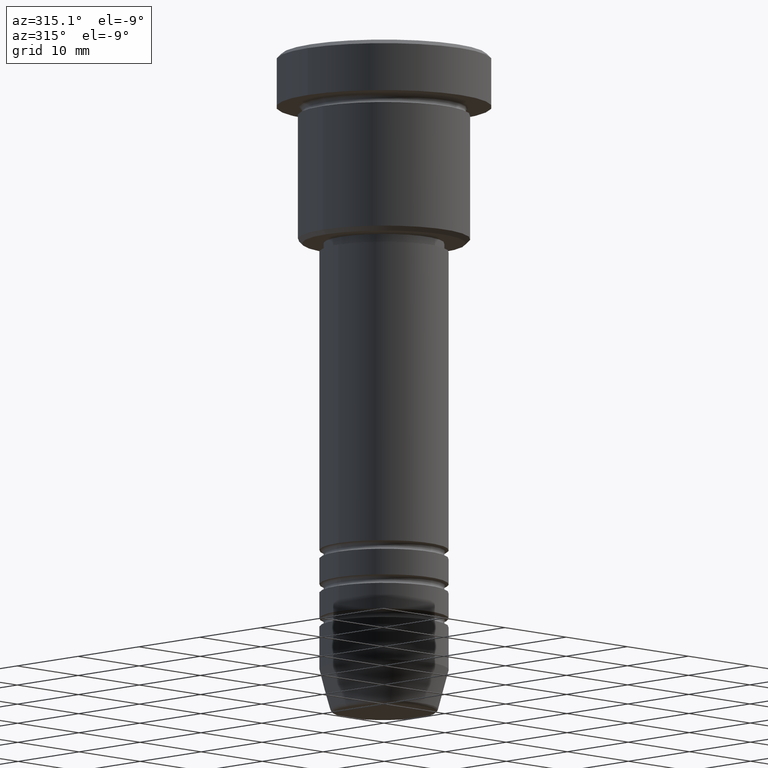
[diagram: clean part render]
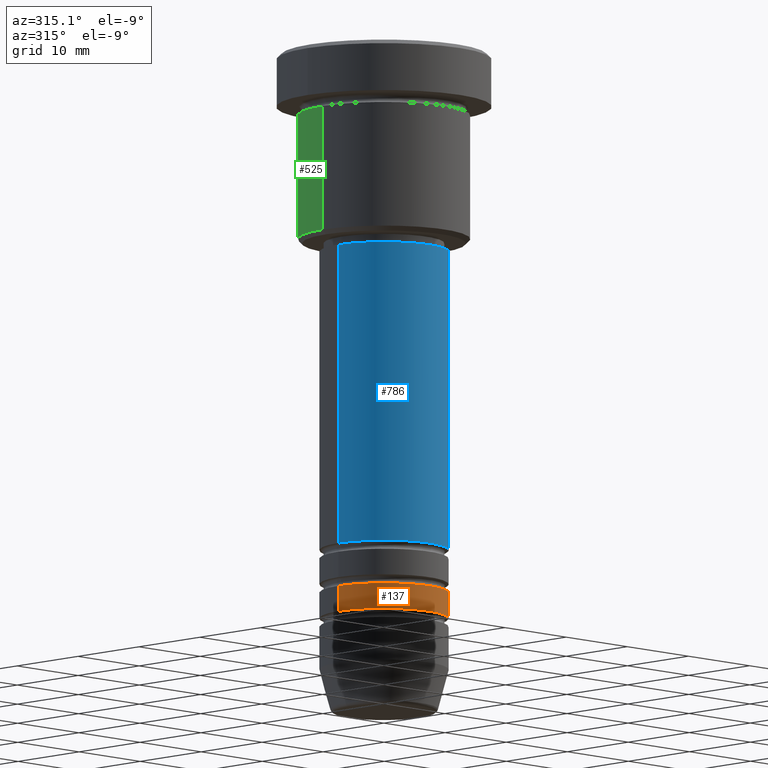
[diagram: same view with three faces highlighted in distinct colors, each labeled with its STEP entity id]
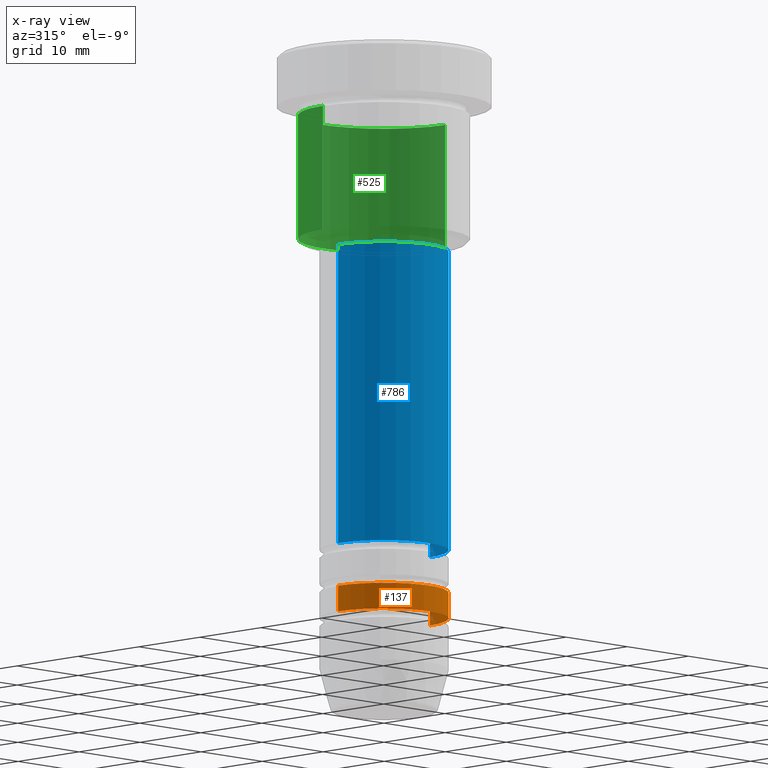
[diagram: x-ray of the same camera — body ghosted, the three highlighted faces saturated]
A machine part, auxiliary view with three faces highlighted in distinct colors.
The next image is the same camera in x-ray (body ghosted, the three faces saturated) — at least one of them is partly hidden behind the body in this view.
Their STEP definitions:

[orange] entity #137 — the highlighted cylindrical surface (partial cylindrical patch) has radius 7.5 mm, axis along (-0, -0, 1).
#4 = ORIENTED_EDGE ( 'NONE', *, *, #803, .F. ) ;
#15 = CARTESIAN_POINT ( 'NONE',  ( -7.500000000000000000, 9.184850993605147944E-16, 0.000000000000000000 ) ) ;
#35 = CARTESIAN_POINT ( 'NONE',  ( 7.500000000000000000, 0.000000000000000000, 0.000000000000000000 ) ) ;
#64 = EDGE_CURVE ( 'NONE', #397, #289, #939, .T. ) ;
#74 = VECTOR ( 'NONE', #737, 1000.000000000000000 ) ;
#126 = DIRECTION ( 'NONE',  ( 1.000000000000000000, 0.000000000000000000, 0.000000000000000000 ) ) ;
#137 = ADVANCED_FACE ( 'NONE', ( #615 ), #334, .T. ) ;
#153 = CARTESIAN_POINT ( 'NONE',  ( 0.000000000000000000, 0.000000000000000000, -65.99999999999988631 ) ) ;
#154 = EDGE_CURVE ( 'NONE', #904, #919, #770, .T. ) ;
#185 = CARTESIAN_POINT ( 'NONE',  ( -7.500000000000000000, 9.184850993605147944E-16, -62.99999999999988631 ) ) ;
#253 = AXIS2_PLACEMENT_3D ( 'NONE', #153, #503, #610 ) ;
#289 = VERTEX_POINT ( 'NONE', #678 ) ;
#334 = CYLINDRICAL_SURFACE ( 'NONE', #426, 7.500000000000000000 ) ;
#345 = DIRECTION ( 'NONE',  ( 1.000000000000000000, 0.000000000000000000, 0.000000000000000000 ) ) ;
#367 = ORIENTED_EDGE ( 'NONE', *, *, #154, .T. ) ;
#397 = VERTEX_POINT ( 'NONE', #185 ) ;
#426 = AXIS2_PLACEMENT_3D ( 'NONE', #434, #625, #345 ) ;
#434 = CARTESIAN_POINT ( 'NONE',  ( 0.000000000000000000, 0.000000000000000000, 0.000000000000000000 ) ) ;
#482 = ORIENTED_EDGE ( 'NONE', *, *, #972, .T. ) ;
#498 = DIRECTION ( 'NONE',  ( -0.000000000000000000, -0.000000000000000000, 1.000000000000000000 ) ) ;
#503 = DIRECTION ( 'NONE',  ( -0.000000000000000000, -0.000000000000000000, 1.000000000000000000 ) ) ;
#607 = LINE ( 'NONE', #35, #980 ) ;
#610 = DIRECTION ( 'NONE',  ( 1.000000000000000000, 0.000000000000000000, 0.000000000000000000 ) ) ;
#615 = FACE_OUTER_BOUND ( 'NONE', #795, .T. ) ;
#625 = DIRECTION ( 'NONE',  ( -0.000000000000000000, -0.000000000000000000, 1.000000000000000000 ) ) ;
#657 = LINE ( 'NONE', #15, #74 ) ;
#676 = ORIENTED_EDGE ( 'NONE', *, *, #64, .F. ) ;
#678 = CARTESIAN_POINT ( 'NONE',  ( 7.500000000000000000, 0.000000000000000000, -62.99999999999988631 ) ) ;
#737 = DIRECTION ( 'NONE',  ( -0.000000000000000000, -0.000000000000000000, 1.000000000000000000 ) ) ;
#770 = CIRCLE ( 'NONE', #253, 7.500000000000000888 ) ;
#795 = EDGE_LOOP ( 'NONE', ( #4, #367, #482, #676 ) ) ;
#803 = EDGE_CURVE ( 'NONE', #904, #397, #657, .T. ) ;
#874 = DIRECTION ( 'NONE',  ( -0.000000000000000000, -0.000000000000000000, 1.000000000000000000 ) ) ;
#904 = VERTEX_POINT ( 'NONE', #1111 ) ;
#919 = VERTEX_POINT ( 'NONE', #933 ) ;
#933 = CARTESIAN_POINT ( 'NONE',  ( 7.500000000000000888, 0.000000000000000000, -65.99999999999988631 ) ) ;
#939 = CIRCLE ( 'NONE', #1073, 7.500000000000000000 ) ;
#963 = CARTESIAN_POINT ( 'NONE',  ( 0.000000000000000000, 0.000000000000000000, -62.99999999999988631 ) ) ;
#972 = EDGE_CURVE ( 'NONE', #919, #289, #607, .T. ) ;
#980 = VECTOR ( 'NONE', #874, 1000.000000000000000 ) ;
#1073 = AXIS2_PLACEMENT_3D ( 'NONE', #963, #498, #126 ) ;
#1111 = CARTESIAN_POINT ( 'NONE',  ( -7.500000000000001776, 9.184850993605149917E-16, -65.99999999999988631 ) ) ;

[blue] entity #786 — the highlighted cylindrical surface (partial cylindrical patch) has radius 7.5 mm, axis along (-0, -0, 1).
#9 = VERTEX_POINT ( 'NONE', #220 ) ;
#13 = CIRCLE ( 'NONE', #906, 7.500000000000000888 ) ;
#164 = DIRECTION ( 'NONE',  ( -0.000000000000000000, -0.000000000000000000, 1.000000000000000000 ) ) ;
#220 = CARTESIAN_POINT ( 'NONE',  ( 7.500000000000000000, 0.000000000000000000, -23.00000000000002842 ) ) ;
#229 = LINE ( 'NONE', #779, #636 ) ;
#305 = DIRECTION ( 'NONE',  ( 1.000000000000000000, 0.000000000000000000, 0.000000000000000000 ) ) ;
#331 = CARTESIAN_POINT ( 'NONE',  ( 7.500000000000000888, 0.000000000000000000, -57.99999999999990052 ) ) ;
#353 = CYLINDRICAL_SURFACE ( 'NONE', #619, 7.500000000000000000 ) ;
#368 = EDGE_CURVE ( 'NONE', #1046, #9, #765, .T. ) ;
#391 = CARTESIAN_POINT ( 'NONE',  ( 7.500000000000000000, 0.000000000000000000, 0.000000000000000000 ) ) ;
#412 = EDGE_CURVE ( 'NONE', #768, #9, #865, .T. ) ;
#440 = DIRECTION ( 'NONE',  ( 1.000000000000000000, 0.000000000000000000, 0.000000000000000000 ) ) ;
#529 = EDGE_CURVE ( 'NONE', #589, #768, #229, .T. ) ;
#532 = DIRECTION ( 'NONE',  ( 1.000000000000000000, 0.000000000000000000, 0.000000000000000000 ) ) ;
#576 = CARTESIAN_POINT ( 'NONE',  ( 0.000000000000000000, 0.000000000000000000, -23.00000000000002842 ) ) ;
#589 = VERTEX_POINT ( 'NONE', #868 ) ;
#619 = AXIS2_PLACEMENT_3D ( 'NONE', #717, #164, #532 ) ;
#636 = VECTOR ( 'NONE', #1063, 1000.000000000000000 ) ;
#658 = DIRECTION ( 'NONE',  ( -0.000000000000000000, -0.000000000000000000, 1.000000000000000000 ) ) ;
#717 = CARTESIAN_POINT ( 'NONE',  ( 0.000000000000000000, 0.000000000000000000, 0.000000000000000000 ) ) ;
#729 = ORIENTED_EDGE ( 'NONE', *, *, #368, .T. ) ;
#748 = VECTOR ( 'NONE', #658, 1000.000000000000000 ) ;
#752 = DIRECTION ( 'NONE',  ( -0.000000000000000000, -0.000000000000000000, 1.000000000000000000 ) ) ;
#765 = LINE ( 'NONE', #391, #748 ) ;
#768 = VERTEX_POINT ( 'NONE', #1163 ) ;
#779 = CARTESIAN_POINT ( 'NONE',  ( -7.500000000000000000, 9.184850993605147944E-16, 0.000000000000000000 ) ) ;
#786 = ADVANCED_FACE ( 'NONE', ( #819 ), #353, .T. ) ;
#802 = DIRECTION ( 'NONE',  ( -0.000000000000000000, -0.000000000000000000, 1.000000000000000000 ) ) ;
#819 = FACE_OUTER_BOUND ( 'NONE', #1101, .T. ) ;
#841 = ORIENTED_EDGE ( 'NONE', *, *, #529, .F. ) ;
#865 = CIRCLE ( 'NONE', #1075, 7.500000000000000000 ) ;
#868 = CARTESIAN_POINT ( 'NONE',  ( -7.500000000000001776, 9.184850993605149917E-16, -57.99999999999990052 ) ) ;
#906 = AXIS2_PLACEMENT_3D ( 'NONE', #907, #802, #440 ) ;
#907 = CARTESIAN_POINT ( 'NONE',  ( 0.000000000000000000, 0.000000000000000000, -57.99999999999990052 ) ) ;
#987 = ORIENTED_EDGE ( 'NONE', *, *, #1089, .T. ) ;
#1046 = VERTEX_POINT ( 'NONE', #331 ) ;
#1063 = DIRECTION ( 'NONE',  ( -0.000000000000000000, -0.000000000000000000, 1.000000000000000000 ) ) ;
#1075 = AXIS2_PLACEMENT_3D ( 'NONE', #576, #752, #305 ) ;
#1089 = EDGE_CURVE ( 'NONE', #589, #1046, #13, .T. ) ;
#1092 = ORIENTED_EDGE ( 'NONE', *, *, #412, .F. ) ;
#1101 = EDGE_LOOP ( 'NONE', ( #841, #987, #729, #1092 ) ) ;
#1163 = CARTESIAN_POINT ( 'NONE',  ( -7.500000000000000000, 9.184850993605147944E-16, -23.00000000000002842 ) ) ;

[green] entity #525 — the highlighted cylindrical surface (partial cylindrical patch) has radius 10 mm, axis along (-0, -0, 1).
#2 = CARTESIAN_POINT ( 'NONE',  ( -10.00000000000000000, 1.224646799147353256E-15, -21.50000000000001776 ) ) ;
#23 = EDGE_CURVE ( 'NONE', #823, #800, #683, .T. ) ;
#30 = CARTESIAN_POINT ( 'NONE',  ( 10.00000000000000000, 0.000000000000000000, 0.000000000000000000 ) ) ;
#55 = AXIS2_PLACEMENT_3D ( 'NONE', #544, #1181, #915 ) ;
#61 = DIRECTION ( 'NONE',  ( 1.000000000000000000, 0.000000000000000000, 0.000000000000000000 ) ) ;
#133 = DIRECTION ( 'NONE',  ( 1.000000000000000000, 0.000000000000000000, 0.000000000000000000 ) ) ;
#135 = LINE ( 'NONE', #244, #616 ) ;
#140 = EDGE_CURVE ( 'NONE', #1183, #403, #135, .T. ) ;
#156 = ORIENTED_EDGE ( 'NONE', *, *, #23, .F. ) ;
#166 = ORIENTED_EDGE ( 'NONE', *, *, #669, .T. ) ;
#191 = AXIS2_PLACEMENT_3D ( 'NONE', #864, #769, #133 ) ;
#244 = CARTESIAN_POINT ( 'NONE',  ( -10.00000000000000000, 1.224646799147353256E-15, 0.000000000000000000 ) ) ;
#392 = DIRECTION ( 'NONE',  ( -0.000000000000000000, -0.000000000000000000, 1.000000000000000000 ) ) ;
#403 = VERTEX_POINT ( 'NONE', #1018 ) ;
#525 = ADVANCED_FACE ( 'NONE', ( #698 ), #804, .T. ) ;
#544 = CARTESIAN_POINT ( 'NONE',  ( 0.000000000000000000, 0.000000000000000000, -21.50000000000001776 ) ) ;
#562 = CARTESIAN_POINT ( 'NONE',  ( 10.00000000000000000, 0.000000000000000000, -6.999999999999996447 ) ) ;
#566 = EDGE_LOOP ( 'NONE', ( #166, #712, #1120, #156 ) ) ;
#616 = VECTOR ( 'NONE', #978, 1000.000000000000000 ) ;
#669 = EDGE_CURVE ( 'NONE', #823, #1183, #1148, .T. ) ;
#683 = LINE ( 'NONE', #30, #862 ) ;
#698 = FACE_OUTER_BOUND ( 'NONE', #566, .T. ) ;
#712 = ORIENTED_EDGE ( 'NONE', *, *, #140, .T. ) ;
#756 = CARTESIAN_POINT ( 'NONE',  ( 10.00000000000000000, 0.000000000000000000, -21.50000000000001776 ) ) ;
#769 = DIRECTION ( 'NONE',  ( -0.000000000000000000, -0.000000000000000000, 1.000000000000000000 ) ) ;
#800 = VERTEX_POINT ( 'NONE', #562 ) ;
#804 = CYLINDRICAL_SURFACE ( 'NONE', #825, 10.00000000000000000 ) ;
#823 = VERTEX_POINT ( 'NONE', #756 ) ;
#825 = AXIS2_PLACEMENT_3D ( 'NONE', #1154, #1149, #61 ) ;
#862 = VECTOR ( 'NONE', #392, 1000.000000000000000 ) ;
#864 = CARTESIAN_POINT ( 'NONE',  ( 0.000000000000000000, 0.000000000000000000, -6.999999999999996447 ) ) ;
#915 = DIRECTION ( 'NONE',  ( -1.000000000000000000, 0.000000000000000000, 0.000000000000000000 ) ) ;
#935 = EDGE_CURVE ( 'NONE', #800, #403, #1094, .T. ) ;
#978 = DIRECTION ( 'NONE',  ( -0.000000000000000000, -0.000000000000000000, 1.000000000000000000 ) ) ;
#1018 = CARTESIAN_POINT ( 'NONE',  ( -10.00000000000000000, 1.224646799147353256E-15, -6.999999999999996447 ) ) ;
#1094 = CIRCLE ( 'NONE', #191, 10.00000000000000000 ) ;
#1120 = ORIENTED_EDGE ( 'NONE', *, *, #935, .F. ) ;
#1148 = CIRCLE ( 'NONE', #55, 10.00000000000000000 ) ;
#1149 = DIRECTION ( 'NONE',  ( -0.000000000000000000, -0.000000000000000000, 1.000000000000000000 ) ) ;
#1154 = CARTESIAN_POINT ( 'NONE',  ( 0.000000000000000000, 0.000000000000000000, 0.000000000000000000 ) ) ;
#1181 = DIRECTION ( 'NONE',  ( -0.000000000000000000, -0.000000000000000000, 1.000000000000000000 ) ) ;
#1183 = VERTEX_POINT ( 'NONE', #2 ) ;